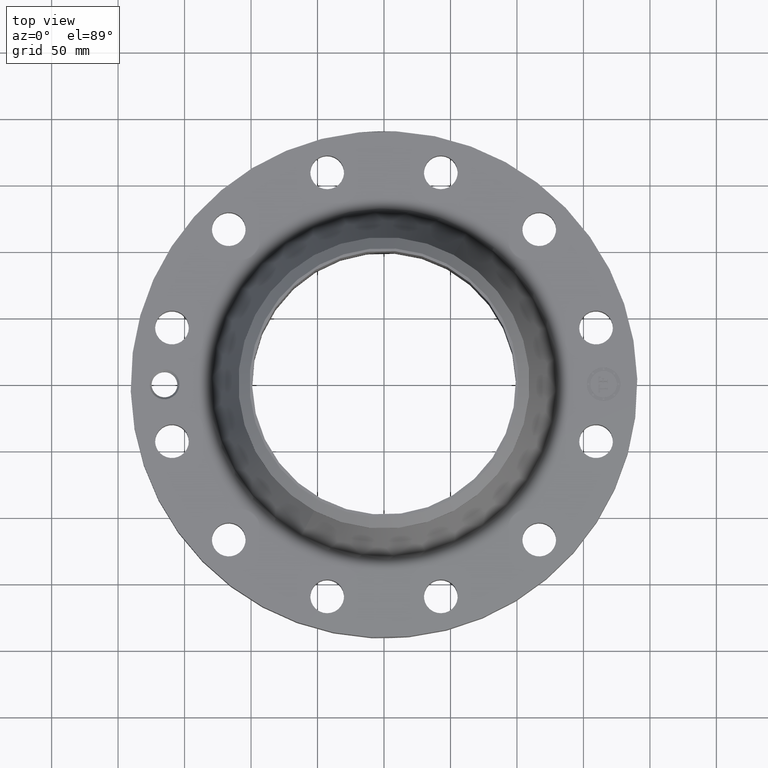
[diagram: clean part render]
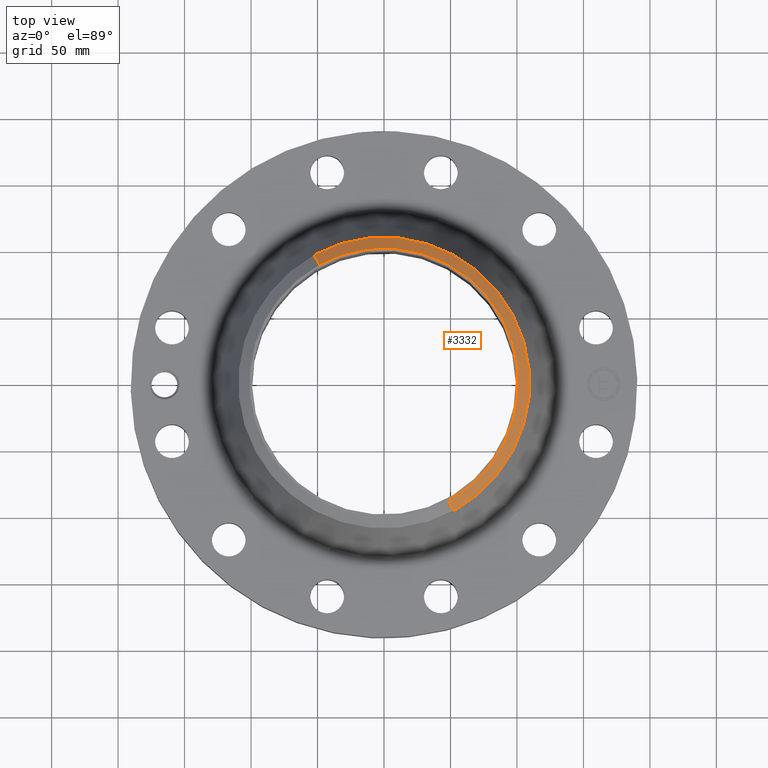
[diagram: same view with one face highlighted and labeled with its STEP entity id]
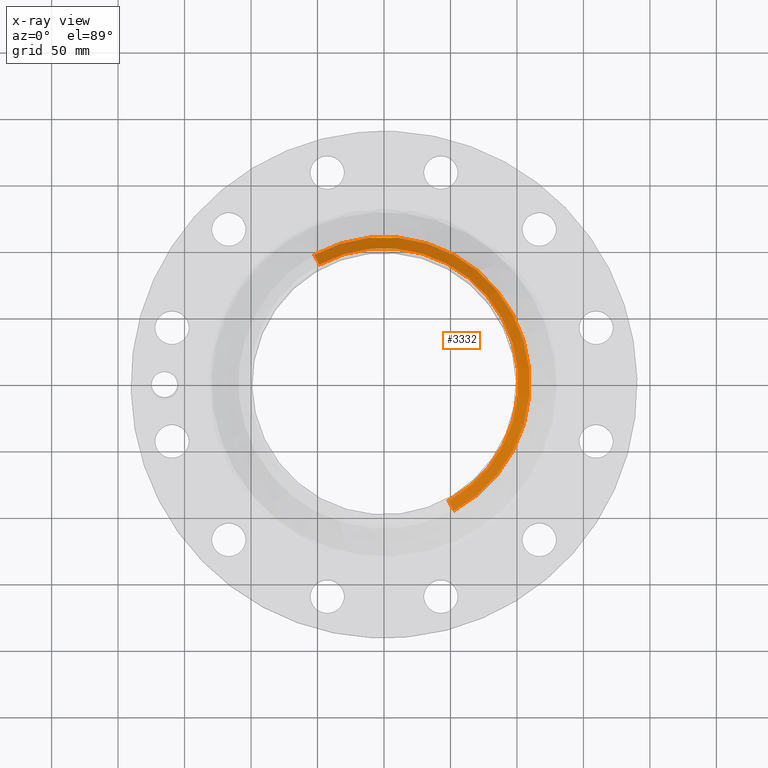
[diagram: x-ray of the same camera — body ghosted, the highlighted face saturated]
A machine part, top view. The second image highlights one B-rep face of the part: STEP entity #3332.
The next image is the same camera in x-ray: the body ghosted, the highlighted face saturated — about 0% of this face is hidden behind the body in this view.
In plain terms, the highlighted conical surface has half-angle 52.5 deg.
Its self-contained STEP definition (entity closure, byte-faithful):
#2492=AXIS2_PLACEMENT_3D('Circle Axis2P3D',#2490,#2491,$) ;
#3277=AXIS2_PLACEMENT_3D('Cone Axis2P3D',#3274,#3275,#3276) ;
#3315=AXIS2_PLACEMENT_3D('Circle Axis2P3D',#3313,#3314,$) ;
#3322=AXIS2_PLACEMENT_3D('Circle Axis2P3D',#3320,#3321,$) ;
#2490=CARTESIAN_POINT('Axis2P3D Location',(0.,0.,4.44000000002)) ;
#2494=CARTESIAN_POINT('Vertex',(1.91062590897,-3.49737726716,4.44000000002)) ;
#2496=CARTESIAN_POINT('Vertex',(-1.91062590897,3.49737726716,4.44000000002)) ;
#3274=CARTESIAN_POINT('Axis2P3D Location',(0.,0.,4.44000000002)) ;
#3279=CARTESIAN_POINT('Line Origine',(1.98967355403,-3.64207301087,4.31348318666)) ;
#3283=CARTESIAN_POINT('Vertex',(2.06872119909,-3.78676875457,4.1869663733)) ;
#3286=CARTESIAN_POINT('Line Origine',(-1.98967355403,3.64207301087,4.31348318666)) ;
#3290=CARTESIAN_POINT('Vertex',(-2.06872119909,3.78676875457,4.1869663733)) ;
#3313=CARTESIAN_POINT('Axis2P3D Location',(0.,0.,4.1869663733)) ;
#3317=CARTESIAN_POINT('Vertex',(2.06872119909,3.78676875457,4.1869663733)) ;
#3320=CARTESIAN_POINT('Axis2P3D Location',(0.,0.,4.1869663733)) ;
#2491=DIRECTION('Axis2P3D Direction',(0.,0.,-0.0393700787402)) ;
#3275=DIRECTION('Axis2P3D Direction',(-0.,-0.,-0.0393700787402)) ;
#3276=DIRECTION('Axis2P3D XDirection',(-0.0188750212049,0.0345504945626,0.)) ;
#3280=DIRECTION('Vector Direction',(0.014974561121,-0.02741075027,-0.023966985394)) ;
#3287=DIRECTION('Vector Direction',(-0.014974561121,0.02741075027,-0.023966985394)) ;
#3314=DIRECTION('Axis2P3D Direction',(0.,0.,-0.0393700787402)) ;
#3321=DIRECTION('Axis2P3D Direction',(0.,0.,-0.0393700787402)) ;
#3281=VECTOR('Line Direction',#3280,0.0393700787402) ;
#3288=VECTOR('Line Direction',#3287,0.0393700787402) ;
#3326=ORIENTED_EDGE('',*,*,#3292,.F.) ;
#3327=ORIENTED_EDGE('',*,*,#2498,.F.) ;
#3328=ORIENTED_EDGE('',*,*,#3285,.T.) ;
#3329=ORIENTED_EDGE('',*,*,#3319,.T.) ;
#3330=ORIENTED_EDGE('',*,*,#3324,.F.) ;
#3332=ADVANCED_FACE('PartBody',(#3331),#3278,.T.) ;
#2493=CIRCLE('generated circle',#2492,3.9852401575) ;
#3316=CIRCLE('generated circle',#3315,4.31500000002) ;
#3323=CIRCLE('generated circle',#3322,4.31500000002) ;
#3278=CONICAL_SURFACE('Cone',#3277,3.9852401575,0.916297857297) ;
#2498=EDGE_CURVE('',#2495,#2497,#2493,.F.) ;
#3285=EDGE_CURVE('',#2495,#3284,#3282,.T.) ;
#3292=EDGE_CURVE('',#2497,#3291,#3289,.T.) ;
#3319=EDGE_CURVE('',#3284,#3318,#3316,.F.) ;
#3324=EDGE_CURVE('',#3291,#3318,#3323,.T.) ;
#3325=EDGE_LOOP('',(#3326,#3327,#3328,#3329,#3330)) ;
#3331=FACE_OUTER_BOUND('',#3325,.T.) ;
#3282=LINE('Line',#3279,#3281) ;
#3289=LINE('Line',#3286,#3288) ;
#2495=VERTEX_POINT('',#2494) ;
#2497=VERTEX_POINT('',#2496) ;
#3284=VERTEX_POINT('',#3283) ;
#3291=VERTEX_POINT('',#3290) ;
#3318=VERTEX_POINT('',#3317) ;